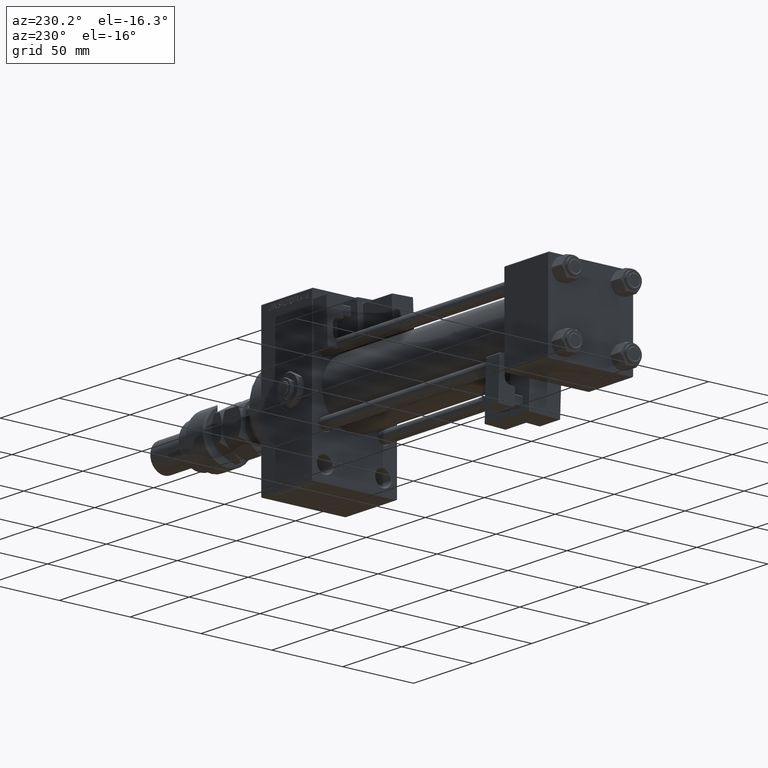
[diagram: clean part render]
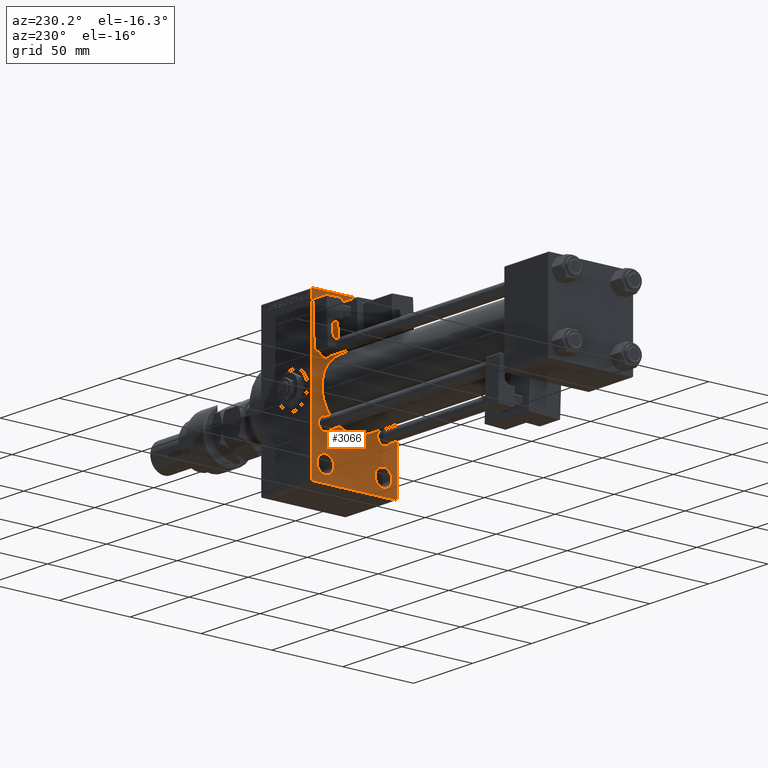
[diagram: same view with one face highlighted and labeled with its STEP entity id]
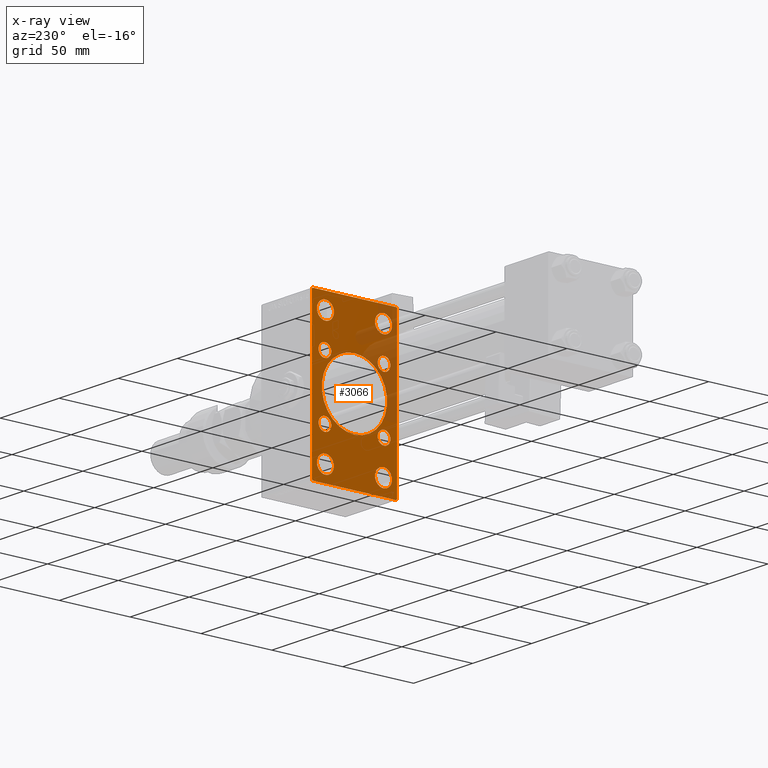
[diagram: x-ray of the same camera — body ghosted, the highlighted face saturated]
A machine part, auxiliary view. The second image highlights one B-rep face of the part: STEP entity #3066.
The next image is the same camera in x-ray: the body ghosted, the highlighted face saturated — about 19% of this face is hidden behind the body in this view.
In plain terms, the highlighted planar face has unit normal (-1, 0, 0).
Its self-contained STEP definition (entity closure, byte-faithful):
#52 = VERTEX_POINT ( 'NONE', #47355 ) ;
#177 = CARTESIAN_POINT ( 'NONE',  ( 200.0000000000000000, -20.84999999999999076, 20.85000000000000497 ) ) ;
#236 = EDGE_LOOP ( 'NONE', ( #38939, #38909 ) ) ;
#299 = DIRECTION ( 'NONE',  ( 1.000000000000000000, 0.000000000000000000, 0.000000000000000000 ) ) ;
#392 = CIRCLE ( 'NONE', #47538, 5.999999999999977796 ) ;
#502 = DIRECTION ( 'NONE',  ( 0.000000000000000000, 0.000000000000000000, 1.000000000000000000 ) ) ;
#591 = AXIS2_PLACEMENT_3D ( 'NONE', #20042, #2806, #19495 ) ;
#858 = AXIS2_PLACEMENT_3D ( 'NONE', #43185, #48359, #31151 ) ;
#922 = ORIENTED_EDGE ( 'NONE', *, *, #51257, .T. ) ;
#1245 = EDGE_CURVE ( 'NONE', #9035, #45406, #14520, .T. ) ;
#1359 = DIRECTION ( 'NONE',  ( 0.000000000000000000, 0.000000000000000000, -1.000000000000000000 ) ) ;
#2000 = EDGE_CURVE ( 'NONE', #29965, #13353, #50182, .T. ) ;
#2115 = FACE_BOUND ( 'NONE', #53114, .T. ) ;
#2775 = ORIENTED_EDGE ( 'NONE', *, *, #29843, .T. ) ;
#2806 = DIRECTION ( 'NONE',  ( 1.000000000000000000, -0.000000000000000000, 0.000000000000000000 ) ) ;
#2885 = DIRECTION ( 'NONE',  ( 0.000000000000000000, 0.000000000000000000, 1.000000000000000000 ) ) ;
#2894 = CARTESIAN_POINT ( 'NONE',  ( 200.0000000000000000, 20.84999999999999787, 20.85000000000000142 ) ) ;
#3066 = ADVANCED_FACE ( 'NONE', ( #6233, #51338, #5154, #46980, #2115, #51610, #21861, #10060, #22663, #18541 ), #48056, .T. ) ;
#3214 = CARTESIAN_POINT ( 'NONE',  ( 200.0000000000000000, -20.50000000000000000, 37.50000000000002132 ) ) ;
#3225 = CARTESIAN_POINT ( 'NONE',  ( 200.0000000000000000, -20.84999999999999076, 25.35000000000001208 ) ) ;
#3474 = VERTEX_POINT ( 'NONE', #5358 ) ;
#3482 = AXIS2_PLACEMENT_3D ( 'NONE', #38828, #299, #1359 ) ;
#3484 = VERTEX_POINT ( 'NONE', #19544 ) ;
#3624 = DIRECTION ( 'NONE',  ( 0.000000000000000000, 0.000000000000000000, 1.000000000000000000 ) ) ;
#3641 = CARTESIAN_POINT ( 'NONE',  ( 200.0000000000000000, -20.50000000000000000, 49.49999999999997158 ) ) ;
#3673 = ORIENTED_EDGE ( 'NONE', *, *, #30938, .T. ) ;
#3796 = DIRECTION ( 'NONE',  ( 1.000000000000000000, -0.000000000000000000, 0.000000000000000000 ) ) ;
#3910 = CARTESIAN_POINT ( 'NONE',  ( 200.0000000000000000, -20.50000000000000000, -37.50000000000002132 ) ) ;
#4545 = CARTESIAN_POINT ( 'NONE',  ( 200.0000000000000000, -41.99999999999928235, 42.00000000000132871 ) ) ;
#4621 = CARTESIAN_POINT ( 'NONE',  ( 200.0000000000000000, -20.84999999999999076, 20.85000000000000497 ) ) ;
#4786 = EDGE_CURVE ( 'NONE', #19048, #21068, #17200, .T. ) ;
#4791 = EDGE_CURVE ( 'NONE', #3484, #12877, #24193, .T. ) ;
#5082 = VERTEX_POINT ( 'NONE', #5242 ) ;
#5154 = FACE_BOUND ( 'NONE', #236, .T. ) ;
#5242 = CARTESIAN_POINT ( 'NONE',  ( 200.0000000000000000, -20.84999999999999076, -25.35000000000001208 ) ) ;
#5358 = CARTESIAN_POINT ( 'NONE',  ( 200.0000000000000000, -30.00000000000000000, -54.00000000000001421 ) ) ;
#5392 = DIRECTION ( 'NONE',  ( 1.000000000000000000, -0.000000000000000000, 0.000000000000000000 ) ) ;
#5655 = EDGE_CURVE ( 'NONE', #9709, #33882, #11078, .T. ) ;
#5907 = CARTESIAN_POINT ( 'NONE',  ( 200.0000000000000000, 29.99999999999999645, 54.49999999999999289 ) ) ;
#6139 = AXIS2_PLACEMENT_3D ( 'NONE', #28782, #16192, #3624 ) ;
#6221 = DIRECTION ( 'NONE',  ( 0.000000000000000000, 0.000000000000000000, 1.000000000000000000 ) ) ;
#6233 = FACE_BOUND ( 'NONE', #33242, .T. ) ;
#7859 = CIRCLE ( 'NONE', #32318, 4.500000000000007105 ) ;
#8388 = CARTESIAN_POINT ( 'NONE',  ( 200.0000000000000000, 41.99999999999915445, -42.00000000000149214 ) ) ;
#8942 = DIRECTION ( 'NONE',  ( -0.000000000000000000, -0.7071067811865672237, -0.7071067811865279218 ) ) ;
#9035 = VERTEX_POINT ( 'NONE', #52659 ) ;
#9085 = CARTESIAN_POINT ( 'NONE',  ( 200.0000000000000000, 42.00000000000081002, 41.99999999999847944 ) ) ;
#9709 = VERTEX_POINT ( 'NONE', #48790 ) ;
#10019 = VECTOR ( 'NONE', #35670, 1000.000000000000000 ) ;
#10060 = FACE_BOUND ( 'NONE', #41757, .T. ) ;
#10120 = DIRECTION ( 'NONE',  ( 0.000000000000000000, -0.7071067811865352493, 0.7071067811865597852 ) ) ;
#10506 = CIRCLE ( 'NONE', #19246, 5.999999999999977796 ) ;
#10844 = CARTESIAN_POINT ( 'NONE',  ( 200.0000000000000000, -29.50000000000000355, 54.50000000000000000 ) ) ;
#10955 = EDGE_CURVE ( 'NONE', #26650, #41894, #20133, .T. ) ;
#11031 = CARTESIAN_POINT ( 'NONE',  ( 200.0000000000000000, 20.84999999999999787, 20.85000000000000142 ) ) ;
#11078 = LINE ( 'NONE', #5907, #35604 ) ;
#11092 = DIRECTION ( 'NONE',  ( 1.000000000000000000, -0.000000000000000000, 0.000000000000000000 ) ) ;
#11188 = EDGE_LOOP ( 'NONE', ( #17258, #35435 ) ) ;
#11332 = VERTEX_POINT ( 'NONE', #40066 ) ;
#11371 = DIRECTION ( 'NONE',  ( 0.000000000000000000, 0.000000000000000000, 1.000000000000000000 ) ) ;
#11499 = CARTESIAN_POINT ( 'NONE',  ( 200.0000000000000000, -20.84999999999999076, -16.34999999999999787 ) ) ;
#11584 = EDGE_LOOP ( 'NONE', ( #21196, #36297 ) ) ;
#12291 = AXIS2_PLACEMENT_3D ( 'NONE', #14148, #39310, #6221 ) ;
#12877 = VERTEX_POINT ( 'NONE', #3910 ) ;
#12900 = CARTESIAN_POINT ( 'NONE',  ( 200.0000000000000000, 20.84999999999999787, -25.35000000000000853 ) ) ;
#13330 = DIRECTION ( 'NONE',  ( 0.000000000000000000, 0.000000000000000000, 1.000000000000000000 ) ) ;
#13353 = VERTEX_POINT ( 'NONE', #10844 ) ;
#13364 = DIRECTION ( 'NONE',  ( 1.000000000000000000, -0.000000000000000000, 0.000000000000000000 ) ) ;
#13666 = AXIS2_PLACEMENT_3D ( 'NONE', #51066, #42892, #13887 ) ;
#13806 = CARTESIAN_POINT ( 'NONE',  ( 200.0000000000000000, -2.602085213965210642E-15, 0.000000000000000000 ) ) ;
#13887 = DIRECTION ( 'NONE',  ( -0.000000000000000000, 0.000000000000000000, 1.000000000000000000 ) ) ;
#14042 = EDGE_LOOP ( 'NONE', ( #31918, #43753 ) ) ;
#14148 = CARTESIAN_POINT ( 'NONE',  ( 200.0000000000000000, -20.84999999999999076, -20.85000000000000497 ) ) ;
#14395 = AXIS2_PLACEMENT_3D ( 'NONE', #4621, #37964, #502 ) ;
#14520 = CIRCLE ( 'NONE', #28430, 23.00000000000000000 ) ;
#14749 = CIRCLE ( 'NONE', #28731, 4.500000000000007105 ) ;
#14880 = EDGE_LOOP ( 'NONE', ( #43002, #2775 ) ) ;
#14925 = DIRECTION ( 'NONE',  ( 0.000000000000000000, 0.000000000000000000, -1.000000000000000000 ) ) ;
#15113 = DIRECTION ( 'NONE',  ( 0.000000000000000000, 0.000000000000000000, 1.000000000000000000 ) ) ;
#15638 = CIRCLE ( 'NONE', #42702, 4.500000000000007105 ) ;
#16192 = DIRECTION ( 'NONE',  ( 1.000000000000000000, -0.000000000000000000, 0.000000000000000000 ) ) ;
#16278 = VERTEX_POINT ( 'NONE', #40652 ) ;
#16385 = VERTEX_POINT ( 'NONE', #32183 ) ;
#16597 = DIRECTION ( 'NONE',  ( 1.000000000000000000, -0.000000000000000000, 0.000000000000000000 ) ) ;
#17200 = CIRCLE ( 'NONE', #47743, 4.500000000000007105 ) ;
#17258 = ORIENTED_EDGE ( 'NONE', *, *, #42612, .T. ) ;
#17363 = CARTESIAN_POINT ( 'NONE',  ( 200.0000000000000000, 20.84999999999999787, 16.34999999999999432 ) ) ;
#17446 = EDGE_CURVE ( 'NONE', #23944, #51678, #30997, .T. ) ;
#17657 = DIRECTION ( 'NONE',  ( 0.000000000000000000, 0.000000000000000000, -1.000000000000000000 ) ) ;
#18000 = CARTESIAN_POINT ( 'NONE',  ( 200.0000000000000000, 29.99999999999999645, -53.99999999999999289 ) ) ;
#18254 = CARTESIAN_POINT ( 'NONE',  ( 200.0000000000000000, 29.49999999999996803, -54.49999999999999289 ) ) ;
#18541 = FACE_OUTER_BOUND ( 'NONE', #22834, .T. ) ;
#18879 = LINE ( 'NONE', #36353, #24094 ) ;
#19048 = VERTEX_POINT ( 'NONE', #12900 ) ;
#19081 = VECTOR ( 'NONE', #8942, 1000.000000000000000 ) ;
#19246 = AXIS2_PLACEMENT_3D ( 'NONE', #36228, #32146, #2885 ) ;
#19329 = EDGE_CURVE ( 'NONE', #29237, #52, #18879, .T. ) ;
#19495 = DIRECTION ( 'NONE',  ( 0.000000000000000000, 0.000000000000000000, 1.000000000000000000 ) ) ;
#19544 = CARTESIAN_POINT ( 'NONE',  ( 200.0000000000000000, -20.50000000000000000, -49.49999999999997158 ) ) ;
#19609 = DIRECTION ( 'NONE',  ( 0.000000000000000000, 0.000000000000000000, 1.000000000000000000 ) ) ;
#19984 = AXIS2_PLACEMENT_3D ( 'NONE', #38211, #5392, #13330 ) ;
#20042 = CARTESIAN_POINT ( 'NONE',  ( 200.0000000000000000, -20.50000000000000000, -43.50000000000000000 ) ) ;
#20133 = CIRCLE ( 'NONE', #6139, 5.999999999999977796 ) ;
#20167 = DIRECTION ( 'NONE',  ( -0.000000000000000000, 0.7071067811865647812, 0.7071067811865302533 ) ) ;
#21068 = VERTEX_POINT ( 'NONE', #31083 ) ;
#21135 = LINE ( 'NONE', #9085, #22724 ) ;
#21196 = ORIENTED_EDGE ( 'NONE', *, *, #37494, .T. ) ;
#21592 = CARTESIAN_POINT ( 'NONE',  ( 200.0000000000000000, -20.84999999999999076, -20.85000000000000497 ) ) ;
#21672 = VECTOR ( 'NONE', #10120, 1000.000000000000000 ) ;
#21861 = FACE_BOUND ( 'NONE', #11188, .T. ) ;
#21869 = DIRECTION ( 'NONE',  ( 0.000000000000000000, 0.000000000000000000, 1.000000000000000000 ) ) ;
#22663 = FACE_BOUND ( 'NONE', #14880, .T. ) ;
#22677 = ORIENTED_EDGE ( 'NONE', *, *, #37608, .F. ) ;
#22724 = VECTOR ( 'NONE', #25504, 1000.000000000000000 ) ;
#22834 = EDGE_LOOP ( 'NONE', ( #41922, #39224, #22677, #36012, #42615, #922, #33002, #33076 ) ) ;
#23110 = CARTESIAN_POINT ( 'NONE',  ( 200.0000000000000000, -30.00000000000000000, 54.50000000000000000 ) ) ;
#23531 = CARTESIAN_POINT ( 'NONE',  ( 200.0000000000000000, 29.49999999999999645, 54.49999999999999289 ) ) ;
#23591 = CIRCLE ( 'NONE', #51505, 4.500000000000007105 ) ;
#23944 = VERTEX_POINT ( 'NONE', #41834 ) ;
#24094 = VECTOR ( 'NONE', #48126, 1000.000000000000000 ) ;
#24193 = CIRCLE ( 'NONE', #591, 5.999999999999977796 ) ;
#24552 = DIRECTION ( 'NONE',  ( 1.000000000000000000, -0.000000000000000000, 0.000000000000000000 ) ) ;
#24610 = VERTEX_POINT ( 'NONE', #17363 ) ;
#24619 = AXIS2_PLACEMENT_3D ( 'NONE', #41220, #40662, #48860 ) ;
#25361 = EDGE_CURVE ( 'NONE', #43751, #24610, #14749, .T. ) ;
#25504 = DIRECTION ( 'NONE',  ( 0.000000000000000000, 0.7071067811865279218, -0.7071067811865672237 ) ) ;
#26441 = EDGE_CURVE ( 'NONE', #39538, #16385, #42790, .T. ) ;
#26650 = VERTEX_POINT ( 'NONE', #3214 ) ;
#27053 = AXIS2_PLACEMENT_3D ( 'NONE', #44492, #24552, #19609 ) ;
#27115 = LINE ( 'NONE', #27647, #39226 ) ;
#27162 = DIRECTION ( 'NONE',  ( 1.000000000000000000, -0.000000000000000000, 0.000000000000000000 ) ) ;
#27422 = CARTESIAN_POINT ( 'NONE',  ( 200.0000000000000000, 20.84999999999999787, -20.85000000000000142 ) ) ;
#27549 = EDGE_CURVE ( 'NONE', #41894, #26650, #10506, .T. ) ;
#27647 = CARTESIAN_POINT ( 'NONE',  ( 200.0000000000000000, 29.99999999999999645, 54.49999999999999289 ) ) ;
#27717 = DIRECTION ( 'NONE',  ( 0.000000000000000000, 0.000000000000000000, 1.000000000000000000 ) ) ;
#28430 = AXIS2_PLACEMENT_3D ( 'NONE', #13806, #50991, #17657 ) ;
#28731 = AXIS2_PLACEMENT_3D ( 'NONE', #2894, #11092, #11371 ) ;
#28782 = CARTESIAN_POINT ( 'NONE',  ( 200.0000000000000000, -20.50000000000000000, 43.50000000000000000 ) ) ;
#28807 = EDGE_CURVE ( 'NONE', #48914, #13353, #27115, .T. ) ;
#29237 = VERTEX_POINT ( 'NONE', #18254 ) ;
#29433 = DIRECTION ( 'NONE',  ( 0.000000000000000000, 0.000000000000000000, 1.000000000000000000 ) ) ;
#29691 = DIRECTION ( 'NONE',  ( 0.000000000000000000, 0.000000000000000000, 1.000000000000000000 ) ) ;
#29843 = EDGE_CURVE ( 'NONE', #45406, #9035, #42746, .T. ) ;
#29965 = VERTEX_POINT ( 'NONE', #41283 ) ;
#30060 = ORIENTED_EDGE ( 'NONE', *, *, #4791, .T. ) ;
#30272 = EDGE_CURVE ( 'NONE', #12877, #3484, #54070, .T. ) ;
#30400 = EDGE_CURVE ( 'NONE', #51678, #23944, #7859, .T. ) ;
#30904 = LINE ( 'NONE', #47567, #21672 ) ;
#30938 = EDGE_CURVE ( 'NONE', #5082, #44608, #23591, .T. ) ;
#30997 = CIRCLE ( 'NONE', #14395, 4.500000000000007105 ) ;
#31083 = CARTESIAN_POINT ( 'NONE',  ( 200.0000000000000000, 20.84999999999999787, -16.34999999999999432 ) ) ;
#31151 = DIRECTION ( 'NONE',  ( 0.000000000000000000, 0.000000000000000000, 1.000000000000000000 ) ) ;
#31627 = ORIENTED_EDGE ( 'NONE', *, *, #10955, .T. ) ;
#31918 = ORIENTED_EDGE ( 'NONE', *, *, #25361, .T. ) ;
#32146 = DIRECTION ( 'NONE',  ( 1.000000000000000000, -0.000000000000000000, 0.000000000000000000 ) ) ;
#32183 = CARTESIAN_POINT ( 'NONE',  ( 200.0000000000000000, 20.50000000000000000, 49.49999999999997158 ) ) ;
#32318 = AXIS2_PLACEMENT_3D ( 'NONE', #177, #16597, #29433 ) ;
#33002 = ORIENTED_EDGE ( 'NONE', *, *, #5655, .T. ) ;
#33055 = CARTESIAN_POINT ( 'NONE',  ( 200.0000000000000000, 20.50000000000000000, 43.50000000000000000 ) ) ;
#33076 = ORIENTED_EDGE ( 'NONE', *, *, #48425, .T. ) ;
#33242 = EDGE_LOOP ( 'NONE', ( #38293, #31627 ) ) ;
#33882 = VERTEX_POINT ( 'NONE', #18000 ) ;
#33958 = CIRCLE ( 'NONE', #19984, 5.999999999999977796 ) ;
#34046 = EDGE_CURVE ( 'NONE', #16278, #11332, #48146, .T. ) ;
#34322 = DIRECTION ( 'NONE',  ( 1.000000000000000000, -0.000000000000000000, 0.000000000000000000 ) ) ;
#35435 = ORIENTED_EDGE ( 'NONE', *, *, #4786, .T. ) ;
#35523 = ORIENTED_EDGE ( 'NONE', *, *, #30400, .T. ) ;
#35604 = VECTOR ( 'NONE', #14925, 1000.000000000000000 ) ;
#35670 = DIRECTION ( 'NONE',  ( 0.000000000000000000, 0.000000000000000000, -1.000000000000000000 ) ) ;
#36012 = ORIENTED_EDGE ( 'NONE', *, *, #2000, .T. ) ;
#36228 = CARTESIAN_POINT ( 'NONE',  ( 200.0000000000000000, -20.50000000000000000, 43.50000000000000000 ) ) ;
#36297 = ORIENTED_EDGE ( 'NONE', *, *, #26441, .T. ) ;
#36353 = CARTESIAN_POINT ( 'NONE',  ( 200.0000000000000000, 29.99999999999999645, -54.49999999999999289 ) ) ;
#37140 = DIRECTION ( 'NONE',  ( 0.000000000000000000, 0.000000000000000000, 1.000000000000000000 ) ) ;
#37301 = CIRCLE ( 'NONE', #38202, 4.500000000000007105 ) ;
#37494 = EDGE_CURVE ( 'NONE', #16385, #39538, #392, .T. ) ;
#37608 = EDGE_CURVE ( 'NONE', #29965, #3474, #50798, .T. ) ;
#37964 = DIRECTION ( 'NONE',  ( 1.000000000000000000, -0.000000000000000000, 0.000000000000000000 ) ) ;
#38202 = AXIS2_PLACEMENT_3D ( 'NONE', #42264, #34322, #29691 ) ;
#38211 = CARTESIAN_POINT ( 'NONE',  ( 200.0000000000000000, 20.50000000000000000, -43.50000000000000000 ) ) ;
#38277 = CARTESIAN_POINT ( 'NONE',  ( 200.0000000000000000, 2.146024240737016609E-16, -23.00000000000000000 ) ) ;
#38293 = ORIENTED_EDGE ( 'NONE', *, *, #27549, .T. ) ;
#38738 = ORIENTED_EDGE ( 'NONE', *, *, #17446, .T. ) ;
#38828 = CARTESIAN_POINT ( 'NONE',  ( 200.0000000000000000, -2.602085213965210642E-15, 0.000000000000000000 ) ) ;
#38909 = ORIENTED_EDGE ( 'NONE', *, *, #45826, .T. ) ;
#38939 = ORIENTED_EDGE ( 'NONE', *, *, #34046, .T. ) ;
#39224 = ORIENTED_EDGE ( 'NONE', *, *, #47736, .T. ) ;
#39226 = VECTOR ( 'NONE', #44321, 1000.000000000000000 ) ;
#39310 = DIRECTION ( 'NONE',  ( 1.000000000000000000, -0.000000000000000000, 0.000000000000000000 ) ) ;
#39367 = CIRCLE ( 'NONE', #12291, 4.500000000000007105 ) ;
#39538 = VERTEX_POINT ( 'NONE', #47084 ) ;
#40066 = CARTESIAN_POINT ( 'NONE',  ( 200.0000000000000000, 20.50000000000000000, -49.49999999999997158 ) ) ;
#40652 = CARTESIAN_POINT ( 'NONE',  ( 200.0000000000000000, 20.50000000000000000, -37.50000000000002132 ) ) ;
#40662 = DIRECTION ( 'NONE',  ( 1.000000000000000000, -0.000000000000000000, 0.000000000000000000 ) ) ;
#40838 = DIRECTION ( 'NONE',  ( 1.000000000000000000, -0.000000000000000000, 0.000000000000000000 ) ) ;
#41220 = CARTESIAN_POINT ( 'NONE',  ( 200.0000000000000000, 20.50000000000000000, -43.50000000000000000 ) ) ;
#41283 = CARTESIAN_POINT ( 'NONE',  ( 200.0000000000000000, -30.00000000000000000, 54.00000000000002842 ) ) ;
#41574 = ORIENTED_EDGE ( 'NONE', *, *, #30272, .T. ) ;
#41757 = EDGE_LOOP ( 'NONE', ( #49956, #3673 ) ) ;
#41834 = CARTESIAN_POINT ( 'NONE',  ( 200.0000000000000000, -20.84999999999999076, 16.34999999999999787 ) ) ;
#41894 = VERTEX_POINT ( 'NONE', #3641 ) ;
#41922 = ORIENTED_EDGE ( 'NONE', *, *, #19329, .T. ) ;
#42264 = CARTESIAN_POINT ( 'NONE',  ( 200.0000000000000000, 20.84999999999999787, -20.85000000000000142 ) ) ;
#42612 = EDGE_CURVE ( 'NONE', #21068, #19048, #37301, .T. ) ;
#42615 = ORIENTED_EDGE ( 'NONE', *, *, #28807, .F. ) ;
#42702 = AXIS2_PLACEMENT_3D ( 'NONE', #11031, #40838, #27717 ) ;
#42746 = CIRCLE ( 'NONE', #3482, 23.00000000000000000 ) ;
#42790 = CIRCLE ( 'NONE', #858, 5.999999999999977796 ) ;
#42892 = DIRECTION ( 'NONE',  ( -1.000000000000000000, 0.000000000000000000, -0.000000000000000000 ) ) ;
#43002 = ORIENTED_EDGE ( 'NONE', *, *, #1245, .T. ) ;
#43185 = CARTESIAN_POINT ( 'NONE',  ( 200.0000000000000000, 20.50000000000000000, 43.50000000000000000 ) ) ;
#43751 = VERTEX_POINT ( 'NONE', #47902 ) ;
#43753 = ORIENTED_EDGE ( 'NONE', *, *, #46344, .T. ) ;
#44321 = DIRECTION ( 'NONE',  ( 0.000000000000000000, -1.000000000000000000, 1.156482317317871478E-16 ) ) ;
#44492 = CARTESIAN_POINT ( 'NONE',  ( 200.0000000000000000, -20.50000000000000000, -43.50000000000000000 ) ) ;
#44608 = VERTEX_POINT ( 'NONE', #11499 ) ;
#45128 = VECTOR ( 'NONE', #20167, 1000.000000000000114 ) ;
#45406 = VERTEX_POINT ( 'NONE', #38277 ) ;
#45826 = EDGE_CURVE ( 'NONE', #11332, #16278, #33958, .T. ) ;
#46344 = EDGE_CURVE ( 'NONE', #24610, #43751, #15638, .T. ) ;
#46385 = LINE ( 'NONE', #8388, #19081 ) ;
#46576 = EDGE_LOOP ( 'NONE', ( #41574, #30060 ) ) ;
#46980 = FACE_BOUND ( 'NONE', #11584, .T. ) ;
#47084 = CARTESIAN_POINT ( 'NONE',  ( 200.0000000000000000, 20.50000000000000000, 37.50000000000002132 ) ) ;
#47355 = CARTESIAN_POINT ( 'NONE',  ( 200.0000000000000000, -29.50000000000002842, -54.50000000000000000 ) ) ;
#47538 = AXIS2_PLACEMENT_3D ( 'NONE', #33055, #3796, #37140 ) ;
#47567 = CARTESIAN_POINT ( 'NONE',  ( 200.0000000000000000, -42.00000000000052580, -41.99999999999906919 ) ) ;
#47736 = EDGE_CURVE ( 'NONE', #52, #3474, #30904, .T. ) ;
#47743 = AXIS2_PLACEMENT_3D ( 'NONE', #27422, #27162, #15113 ) ;
#47902 = CARTESIAN_POINT ( 'NONE',  ( 200.0000000000000000, 20.84999999999999787, 25.35000000000000853 ) ) ;
#48056 = PLANE ( 'NONE',  #13666 ) ;
#48126 = DIRECTION ( 'NONE',  ( 0.000000000000000000, -1.000000000000000000, -1.156482317317871478E-16 ) ) ;
#48146 = CIRCLE ( 'NONE', #24619, 5.999999999999977796 ) ;
#48359 = DIRECTION ( 'NONE',  ( 1.000000000000000000, -0.000000000000000000, 0.000000000000000000 ) ) ;
#48425 = EDGE_CURVE ( 'NONE', #33882, #29237, #46385, .T. ) ;
#48790 = CARTESIAN_POINT ( 'NONE',  ( 200.0000000000000000, 29.99999999999999645, 53.99999999999996447 ) ) ;
#48860 = DIRECTION ( 'NONE',  ( 0.000000000000000000, 0.000000000000000000, 1.000000000000000000 ) ) ;
#48914 = VERTEX_POINT ( 'NONE', #23531 ) ;
#49956 = ORIENTED_EDGE ( 'NONE', *, *, #52841, .T. ) ;
#50182 = LINE ( 'NONE', #4545, #45128 ) ;
#50798 = LINE ( 'NONE', #23110, #10019 ) ;
#50991 = DIRECTION ( 'NONE',  ( 1.000000000000000000, 0.000000000000000000, 0.000000000000000000 ) ) ;
#51066 = CARTESIAN_POINT ( 'NONE',  ( 200.0000000000000000, 0.000000000000000000, 0.000000000000000000 ) ) ;
#51257 = EDGE_CURVE ( 'NONE', #48914, #9709, #21135, .T. ) ;
#51338 = FACE_BOUND ( 'NONE', #46576, .T. ) ;
#51505 = AXIS2_PLACEMENT_3D ( 'NONE', #21592, #13364, #21869 ) ;
#51610 = FACE_BOUND ( 'NONE', #14042, .T. ) ;
#51678 = VERTEX_POINT ( 'NONE', #3225 ) ;
#52659 = CARTESIAN_POINT ( 'NONE',  ( 200.0000000000000000, -2.602085213965210642E-15, 23.00000000000000000 ) ) ;
#52841 = EDGE_CURVE ( 'NONE', #44608, #5082, #39367, .T. ) ;
#53114 = EDGE_LOOP ( 'NONE', ( #35523, #38738 ) ) ;
#54070 = CIRCLE ( 'NONE', #27053, 5.999999999999977796 ) ;